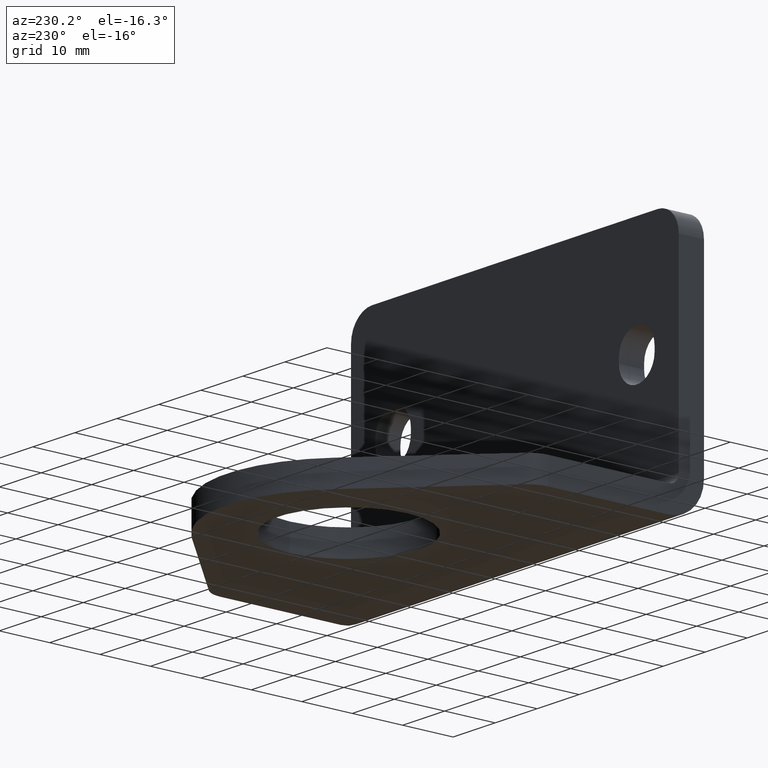
[diagram: clean part render]
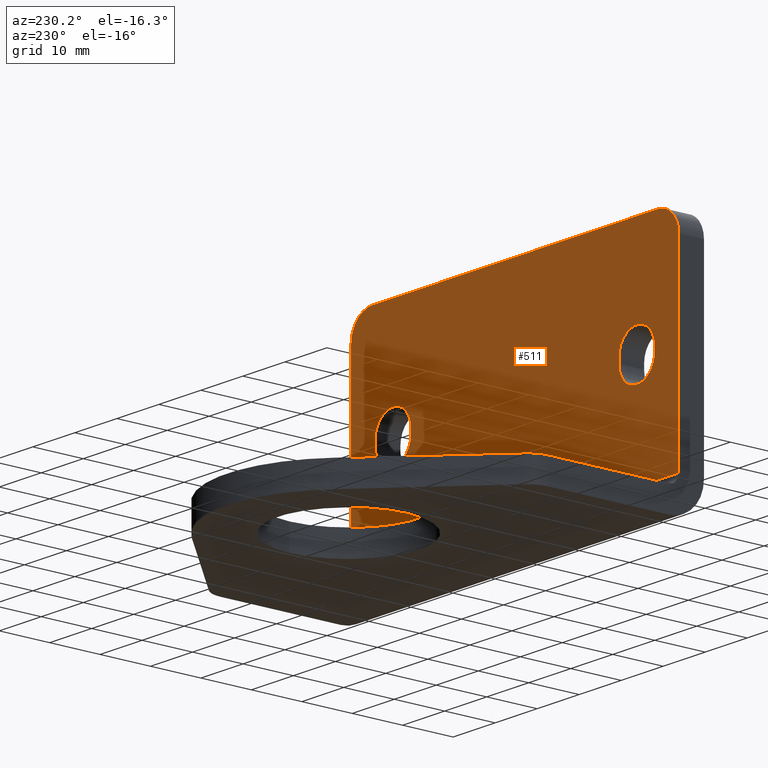
[diagram: same view with one face highlighted and labeled with its STEP entity id]
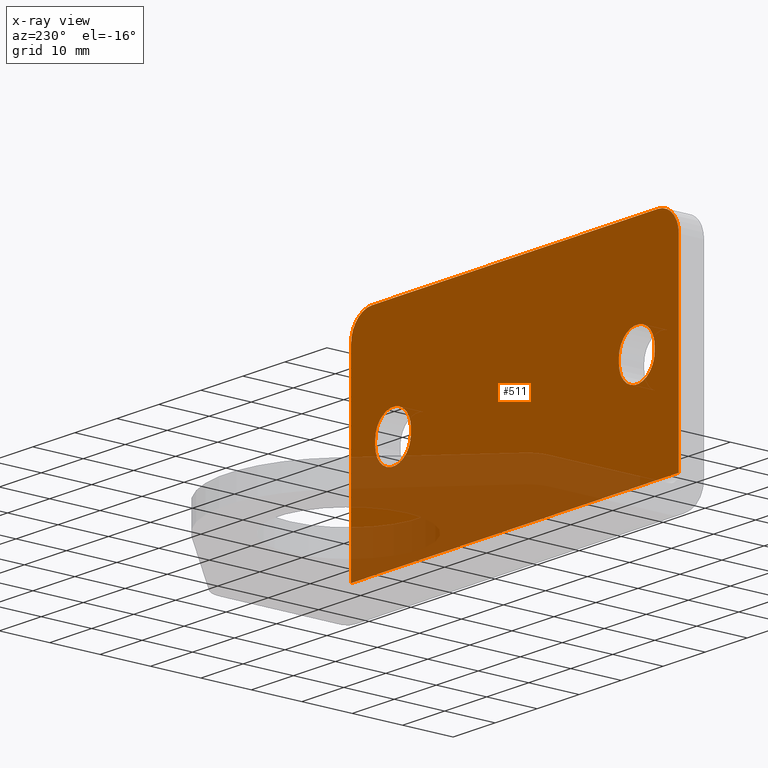
[diagram: x-ray of the same camera — body ghosted, the highlighted face saturated]
A machine part, auxiliary view. The second image highlights one B-rep face of the part: STEP entity #511.
The next image is the same camera in x-ray: the body ghosted, the highlighted face saturated — about 25% of this face is hidden behind the body in this view.
In plain terms, the highlighted planar face has unit normal (0, 1, 0).
Its self-contained STEP definition (entity closure, byte-faithful):
#15=FACE_BOUND('',#78,.T.);
#16=FACE_BOUND('',#79,.T.);
#26=PLANE('',#573);
#48=FACE_OUTER_BOUND('',#77,.T.);
#77=EDGE_LOOP('',(#383,#384,#385,#386,#387,#388));
#78=EDGE_LOOP('',(#389,#390,#391,#392));
#79=EDGE_LOOP('',(#393,#394,#395,#396));
#104=LINE('',#775,#153);
#108=LINE('',#786,#157);
#112=LINE('',#799,#161);
#116=LINE('',#810,#165);
#120=LINE('',#823,#169);
#123=LINE('',#829,#172);
#124=LINE('',#831,#173);
#125=LINE('',#833,#174);
#153=VECTOR('',#618,10.);
#157=VECTOR('',#630,10.);
#161=VECTOR('',#642,10.);
#165=VECTOR('',#654,10.);
#169=VECTOR('',#666,10.);
#172=VECTOR('',#671,4.19999999999999);
#173=VECTOR('',#672,10.);
#174=VECTOR('',#673,4.19999999999999);
#200=CIRCLE('',#554,4.25);
#202=CIRCLE('',#558,4.25);
#204=CIRCLE('',#562,4.25);
#206=CIRCLE('',#566,4.25);
#209=CIRCLE('',#571,5.);
#210=CIRCLE('',#574,5.);
#224=VERTEX_POINT('',#765);
#225=VERTEX_POINT('',#766);
#228=VERTEX_POINT('',#774);
#230=VERTEX_POINT('',#780);
#232=VERTEX_POINT('',#789);
#233=VERTEX_POINT('',#790);
#236=VERTEX_POINT('',#798);
#238=VERTEX_POINT('',#804);
#242=VERTEX_POINT('',#816);
#243=VERTEX_POINT('',#818);
#244=VERTEX_POINT('',#822);
#246=VERTEX_POINT('',#828);
#247=VERTEX_POINT('',#830);
#248=VERTEX_POINT('',#832);
#270=EDGE_CURVE('',#224,#225,#200,.T.);
#274=EDGE_CURVE('',#228,#224,#104,.T.);
#277=EDGE_CURVE('',#230,#228,#202,.T.);
#280=EDGE_CURVE('',#225,#230,#108,.T.);
#282=EDGE_CURVE('',#232,#233,#204,.T.);
#286=EDGE_CURVE('',#236,#232,#112,.T.);
#289=EDGE_CURVE('',#238,#236,#206,.T.);
#292=EDGE_CURVE('',#233,#238,#116,.T.);
#296=EDGE_CURVE('',#242,#243,#209,.T.);
#298=EDGE_CURVE('',#244,#243,#120,.T.);
#301=EDGE_CURVE('',#242,#246,#123,.T.);
#302=EDGE_CURVE('',#246,#247,#124,.T.);
#303=EDGE_CURVE('',#248,#247,#125,.T.);
#304=EDGE_CURVE('',#244,#248,#210,.T.);
#383=ORIENTED_EDGE('',*,*,#296,.F.);
#384=ORIENTED_EDGE('',*,*,#301,.T.);
#385=ORIENTED_EDGE('',*,*,#302,.T.);
#386=ORIENTED_EDGE('',*,*,#303,.F.);
#387=ORIENTED_EDGE('',*,*,#304,.F.);
#388=ORIENTED_EDGE('',*,*,#298,.T.);
#389=ORIENTED_EDGE('',*,*,#270,.T.);
#390=ORIENTED_EDGE('',*,*,#280,.T.);
#391=ORIENTED_EDGE('',*,*,#277,.T.);
#392=ORIENTED_EDGE('',*,*,#274,.T.);
#393=ORIENTED_EDGE('',*,*,#282,.T.);
#394=ORIENTED_EDGE('',*,*,#292,.T.);
#395=ORIENTED_EDGE('',*,*,#289,.T.);
#396=ORIENTED_EDGE('',*,*,#286,.T.);
#511=ADVANCED_FACE('',(#48,#15,#16),#26,.T.);
#554=AXIS2_PLACEMENT_3D('',#767,#610,#611);
#558=AXIS2_PLACEMENT_3D('',#781,#623,#624);
#562=AXIS2_PLACEMENT_3D('',#791,#634,#635);
#566=AXIS2_PLACEMENT_3D('',#805,#647,#648);
#571=AXIS2_PLACEMENT_3D('',#819,#661,#662);
#573=AXIS2_PLACEMENT_3D('',#827,#669,#670);
#574=AXIS2_PLACEMENT_3D('',#834,#674,#675);
#610=DIRECTION('center_axis',(-4.25792305087083E-18,-1.,-5.54443622414857E-15));
#611=DIRECTION('ref_axis',(-1.,4.25792305091718E-18,-8.35932630305997E-15));
#618=DIRECTION('',(8.88178419700128E-15,5.54443622414857E-15,-1.));
#623=DIRECTION('center_axis',(-4.25792305087083E-18,-1.,-5.54443622414857E-15));
#624=DIRECTION('ref_axis',(1.,-4.25792305092297E-18,9.40424209094251E-15));
#630=DIRECTION('',(-8.88178419700128E-15,-5.54443622414857E-15,1.));
#634=DIRECTION('center_axis',(-4.25792305087083E-18,-1.,-5.54443622414857E-15));
#635=DIRECTION('ref_axis',(-1.,4.25792305091718E-18,-8.35932630305997E-15));
#642=DIRECTION('',(8.88178419700128E-15,5.54443622414857E-15,-1.));
#647=DIRECTION('center_axis',(-4.25792305087083E-18,-1.,-5.54443622414857E-15));
#648=DIRECTION('ref_axis',(1.,-4.25792305092297E-18,9.40424209094251E-15));
#654=DIRECTION('',(-8.88178419700128E-15,-5.54443622414857E-15,1.));
#661=DIRECTION('center_axis',(-4.25792305087083E-18,-1.,-5.54443622414857E-15));
#662=DIRECTION('ref_axis',(0.707106781186548,-3.92351925821483E-15,0.707106781186548));
#666=DIRECTION('',(1.,0.,0.));
#669=DIRECTION('center_axis',(4.25792305087083E-18,1.,5.54443622414857E-15));
#670=DIRECTION('ref_axis',(1.,-4.25792305087083E-18,-2.36077828028854E-32));
#671=DIRECTION('',(0.,5.32907051820075E-15,-1.));
#672=DIRECTION('',(-1.,4.25792305087083E-18,2.29514947909264E-32));
#673=DIRECTION('',(0.,5.32907051820075E-15,-1.));
#674=DIRECTION('center_axis',(-4.25792305087083E-18,-1.,-5.54443622414857E-15));
#675=DIRECTION('ref_axis',(-0.707106781186548,-3.91749764568875E-15,0.707106781186548));
#765=CARTESIAN_POINT('',(84.3542548020733,226.400291811824,27.5));
#766=CARTESIAN_POINT('',(92.8542548020733,226.400291811824,27.5000000000001));
#767=CARTESIAN_POINT('Origin',(88.6042548020733,226.400291811824,27.5));
#774=CARTESIAN_POINT('',(84.3542548020733,226.400291811824,28.5));
#775=CARTESIAN_POINT('',(84.3542548020733,226.400291811824,26.8506638568655));
#780=CARTESIAN_POINT('',(92.8542548020733,226.400291811824,28.5000000000001));
#781=CARTESIAN_POINT('Origin',(88.6042548020733,226.400291811824,28.5));
#786=CARTESIAN_POINT('',(92.8542548020733,226.400291811824,26.3506638568656));
#789=CARTESIAN_POINT('',(26.3542548020733,226.400291811824,27.5));
#790=CARTESIAN_POINT('',(34.8542548020733,226.400291811824,27.5000000000001));
#791=CARTESIAN_POINT('Origin',(30.6042548020733,226.400291811824,27.5));
#798=CARTESIAN_POINT('',(26.3542548020733,226.400291811824,28.5));
#799=CARTESIAN_POINT('',(26.3542548020733,226.400291811824,26.8506638568653));
#804=CARTESIAN_POINT('',(34.8542548020733,226.400291811824,28.5000000000001));
#805=CARTESIAN_POINT('Origin',(30.6042548020733,226.400291811824,28.5));
#810=CARTESIAN_POINT('',(34.8542548020734,226.400291811824,26.3506638568653));
#816=CARTESIAN_POINT('',(98.6042548020733,226.400291811824,45.));
#818=CARTESIAN_POINT('',(93.6042548020733,226.400291811824,50.));
#819=CARTESIAN_POINT('Origin',(93.6042548020733,226.400291811824,45.));
#822=CARTESIAN_POINT('',(25.6042546020733,226.400291811824,50.));
#823=CARTESIAN_POINT('',(20.6042546020733,226.400291811824,50.));
#827=CARTESIAN_POINT('Origin',(59.6042547020733,226.400291811824,25.2013277137308));
#828=CARTESIAN_POINT('',(98.6042548020733,226.400291811824,7.00000000000003));
#829=CARTESIAN_POINT('',(98.6042548020733,226.400291811824,-6.19468914507706));
#830=CARTESIAN_POINT('',(20.6042546020733,226.400291811824,7.00000000000003));
#831=CARTESIAN_POINT('',(59.6042547020733,226.400291811824,6.99999999999999));
#832=CARTESIAN_POINT('',(20.6042546020733,226.400291811824,45.));
#833=CARTESIAN_POINT('',(20.6042546020733,226.400291811824,-6.19468914507706));
#834=CARTESIAN_POINT('Origin',(25.6042546020733,226.400291811824,45.));